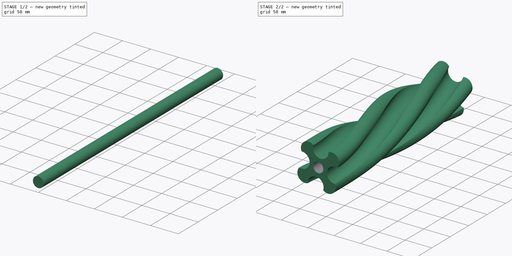
[diagram: build sequence overview — one tinted view per stage of 2, left to right]
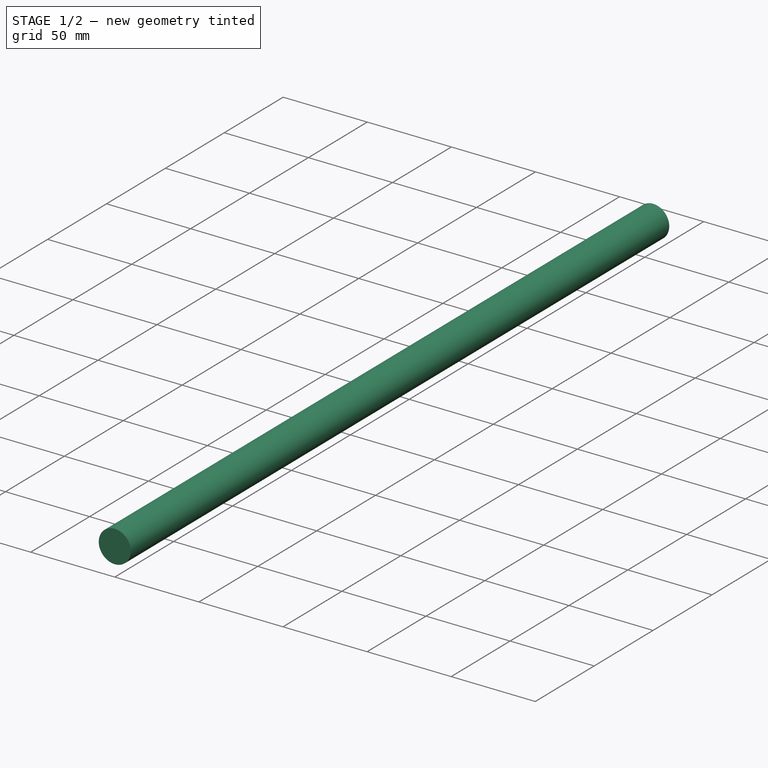
[diagram: stage 1 of 2 — iso view after this stage's code; geometry added in this stage tinted green]
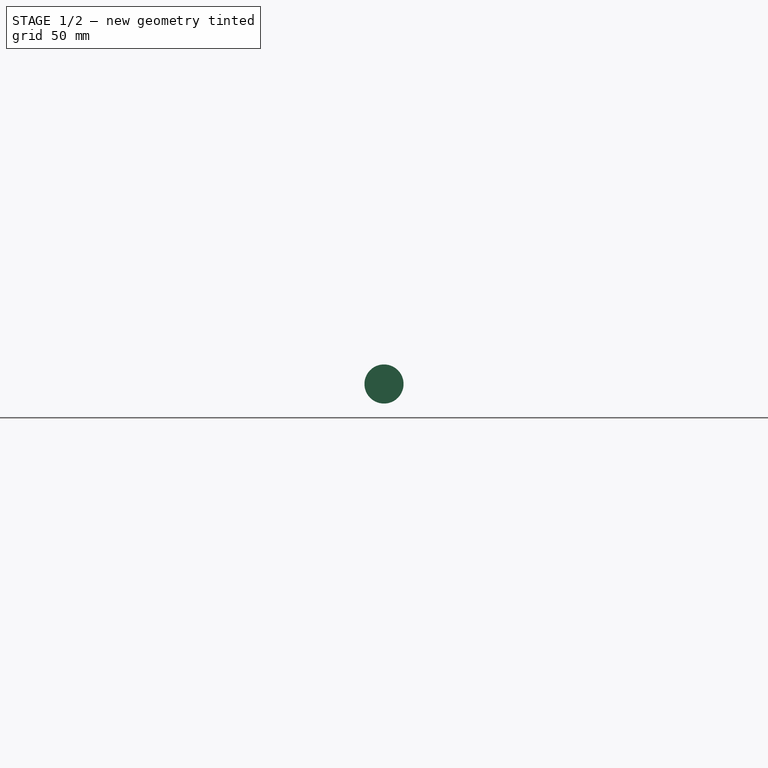
[diagram: stage 1 of 2 — front view after this stage's code; geometry added in this stage tinted green]
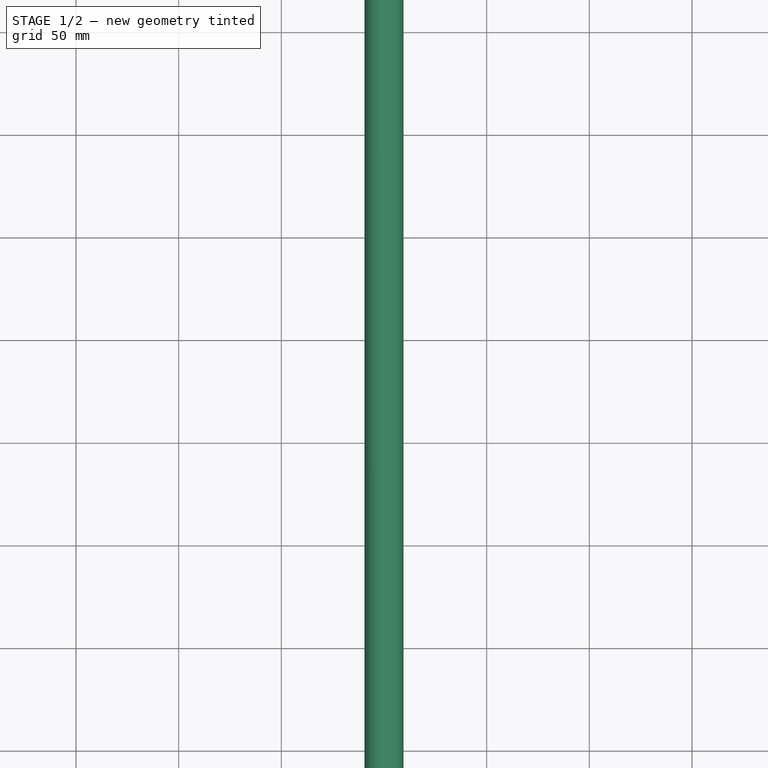
[diagram: stage 1 of 2 — top view after this stage's code; geometry added in this stage tinted green]
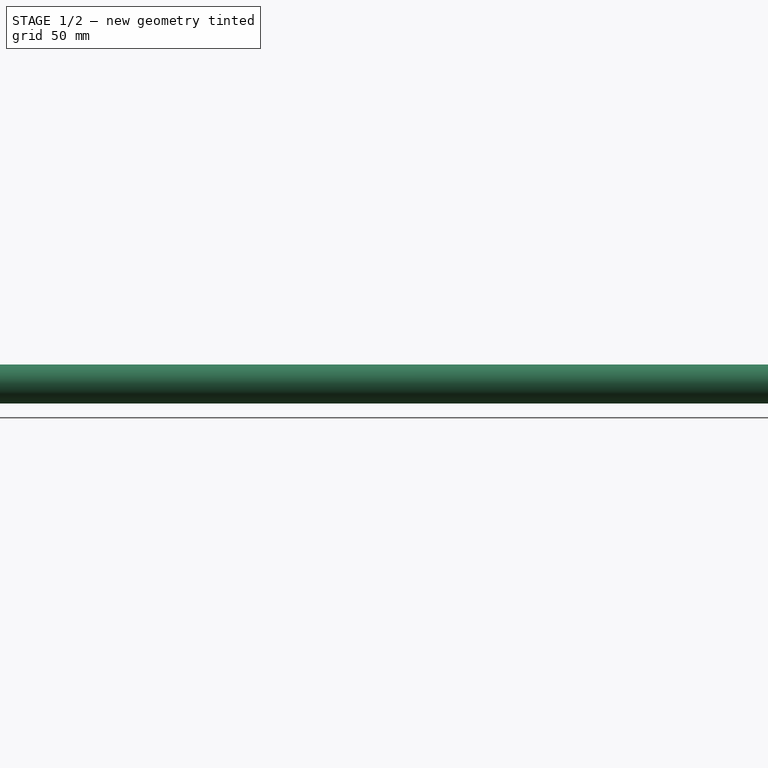
[diagram: stage 1 of 2 — right view after this stage's code; geometry added in this stage tinted green]
FCSTD DOCUMENT  (FreeCAD 2021.0226R23964 +3297 (Git))
Label: lobe2
License: All rights reserved
LicenseURL: http://en.wikipedia.org/wiki/All_rights_reserved
objects: Sketcher::SketchObject×4, Part::FeaturePython×1, Part::Extrusion×1, Part::Cut×1
note: 7 computed .brp shape members not serialized (recipe doc carries the construction recipe); baked Part::Feature solids carry a one-line shape summary decoded from their .brp

FEATURE [Sketcher::SketchObject] Sketch
  FullyConstrained = true
  MapMode = 5
  Placement = pos=(0,0,0) rot=(1,0,0;1.5708rad)
  sketch-geometry (9):
    g0: ArcOfCircle CenterX=0 CenterY=31.75 CenterZ=0 NormalX=0 NormalY=0 NormalZ=1 AngleXU=0 Radius=14.2627 StartAngle=0.202936 EndAngle=2.93866
    g1: ArcOfCircle CenterX=22.4506 CenterY=22.4506 CenterZ=0 NormalX=0 NormalY=0 NormalZ=1 AngleXU=0 Radius=14.8367 StartAngle=2.17925 EndAngle=5.67473
    g2: LineSegment [constr] StartX=22.4506 StartY=22.4506 StartZ=0 EndX=0 EndY=0 EndZ=0
    g3: ArcOfCircle CenterX=31.75 CenterY=0 CenterZ=0 NormalX=0 NormalY=0 NormalZ=1 AngleXU=0 Radius=14.2627 StartAngle=4.91533 EndAngle=7.65105
    g4: ArcOfCircle CenterX=-2.11e-14 CenterY=-31.75 CenterZ=0 NormalX=0 NormalY=0 NormalZ=1 AngleXU=0 Radius=14.2627 StartAngle=3.34453 EndAngle=6.08025
    g5: ArcOfCircle CenterX=22.4506 CenterY=-22.4506 CenterZ=0 NormalX=0 NormalY=0 NormalZ=1 AngleXU=0 Radius=14.8367 StartAngle=0.608455 EndAngle=4.10393
    g6: ArcOfCircle CenterX=-22.4506 CenterY=22.4506 CenterZ=0 NormalX=0 NormalY=0 NormalZ=1 AngleXU=0 Radius=14.8367 StartAngle=3.75005 EndAngle=7.24553
    g7: ArcOfCircle CenterX=-31.75 CenterY=1.69e-14 CenterZ=0 NormalX=0 NormalY=0 NormalZ=1 AngleXU=0 Radius=14.2627 StartAngle=1.77373 EndAngle=4.50945
    g8: ArcOfCircle CenterX=-22.4506 CenterY=-22.4506 CenterZ=0 NormalX=0 NormalY=0 NormalZ=1 AngleXU=0 Radius=14.8367 StartAngle=5.32084 EndAngle=8.81632
  constraints (34):
    c: PointOnObject(g0,g-2)
    c: DistanceX(g0,g0) = 27.94
    c: DistanceY(g-1,g0) = 31.75
    c: Coincident(g1,g0)
    c: Distance(g-1,g1) = 31.75
    c: Distance(g0,g1) = 29.21
    c: Coincident(g2,g1)
    c: Coincident(g2,g-1)
    c: Angle(g-1,g2) = 0.785398
    c: PointOnObject(g3,g-1)
    c: Coincident(g3,g1)
    c: Vertical(g1,g3)
    c: DistanceX(g-1,g3) = 31.75
    c: Horizontal(g0,g0)
    c: Equal(g0,g3)
    c: Coincident(g5,g4)
    c: Distance(g4,g5) = 29.21
    c: Distance(g-1,g5) = 31.75
    c: Equal(g4,g3)
    c: Horizontal(g4,g4)
    c: Equal(g1,g5)
    c: DistanceY(g4,g-1) = 31.75
    c: Coincident(g5,g3)
    c: Coincident(g7,g6)
    c: Equal(g6,g8)
    c: Coincident(g8,g7)
    c: Equal(g7,g0)
    c: Vertical(g6,g7)
    c: Distance(g6,g-1) = 31.75
    c: Distance(g8,g-1) = 31.75
    c: DistanceX(g7,g-1) = 31.75
    c: Coincident(g0,g6)
    c: Coincident(g4,g8)
    c: Distance(g6,g0) = 29.21
FEATURE [Sketcher::SketchObject] Sketch001
  FullyConstrained = true
  sketch-geometry (3):
    g0: LineSegment StartX=-45.72 StartY=355.6 StartZ=0 EndX=-45.72 EndY=0 EndZ=0
    g1: LineSegment [constr] StartX=-45.72 StartY=0 StartZ=0 EndX=45.72 EndY=-7.1e-15 EndZ=0
    g2: LineSegment StartX=45.72 StartY=-7.1e-15 StartZ=0 EndX=45.72 EndY=355.6 EndZ=0
  constraints (9):
    c: PointOnObject(g0,g-1)
    c: Vertical(g0)
    c: Coincident(g0,g1)
    c: Coincident(g1,g2)
    c: Vertical(g2)
    c: Symmetric(g0,g1,g-2)
    c: DistanceX(g0,g-1) = 45.72
    c: DistanceY(g0,g0) = 355.6
    c: Equal(g2,g0)
FEATURE [Sketcher::SketchObject] Sketch002
  FullyConstrained = true
  Placement = pos=(0,0,0) rot=(0.57735,0.57735,0.57735;2.0944rad)
  sketch-geometry (3):
    g0: LineSegment StartX=355.6 StartY=45.72 StartZ=0 EndX=0 EndY=45.72 EndZ=0
    g1: LineSegment [constr] StartX=0 StartY=45.72 StartZ=0 EndX=0 EndY=-45.72 EndZ=0
    g2: LineSegment StartX=0 StartY=-45.72 StartZ=0 EndX=355.6 EndY=-45.72 EndZ=0
  constraints (9):
    c: PointOnObject(g0,g-2)
    c: Horizontal(g0)
    c: Coincident(g0,g1)
    c: Coincident(g1,g2)
    c: Horizontal(g2)
    c: Symmetric(g0,g1,g-1)
    c: DistanceX(g0,g0) = 355.6
    c: Equal(g2,g0)
    c: DistanceY(g1,g0) = 91.44
FEATURE [Part::FeaturePython] CurvedArray  # WARN: FeaturePython — macro-defined, semantics opaque (R4)
  Axis = (0,1,0)
  Base = -> Sketch
  Distribution = 0
  DistributionReverse = false
  Hullcurves = -> [Sketch001,Sketch002]
  Items = 50
  OffsetEnd = 0
  OffsetStart = 0
  Solid = true
  Surface = false
  Twist = -200
FEATURE [Sketcher::SketchObject] Sketch003
  FullyConstrained = true
  MapMode = 5
  Placement = pos=(0,1.02e-14,0) rot=(1,0,0;1.5708rad)
  Support = -> [CurvedArray]
  sketch-geometry (1):
    g0: Circle CenterX=0 CenterY=0 CenterZ=0 NormalX=0 NormalY=0 NormalZ=1 AngleXU=0 Radius=9.525
  constraints (2):
    c: Coincident(g0,g-1)
    c: Radius(g0) = 9.525
FEATURE [Part::Extrusion] Extrude
  Base = -> Sketch003
  Dir = (1e-16,-1,-2e-16)
  DirMode = 2
  FaceMakerClass = Part::FaceMakerBullseye
  InnerTaperAngle = 0
  InnerTaperAngleRev = 0
  LengthFwd = 457.2
  LengthRev = 0
  Reversed = true
  Solid = true
  Symmetric = false
  UsePipeForDraft = true
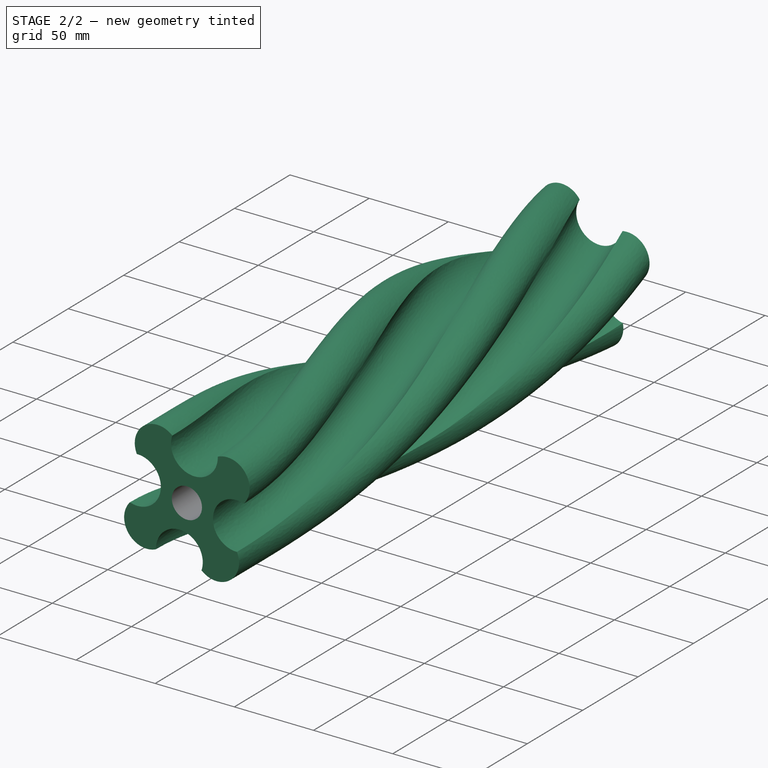
[diagram: stage 2 of 2 — iso view after this stage's code; geometry added in this stage tinted green]
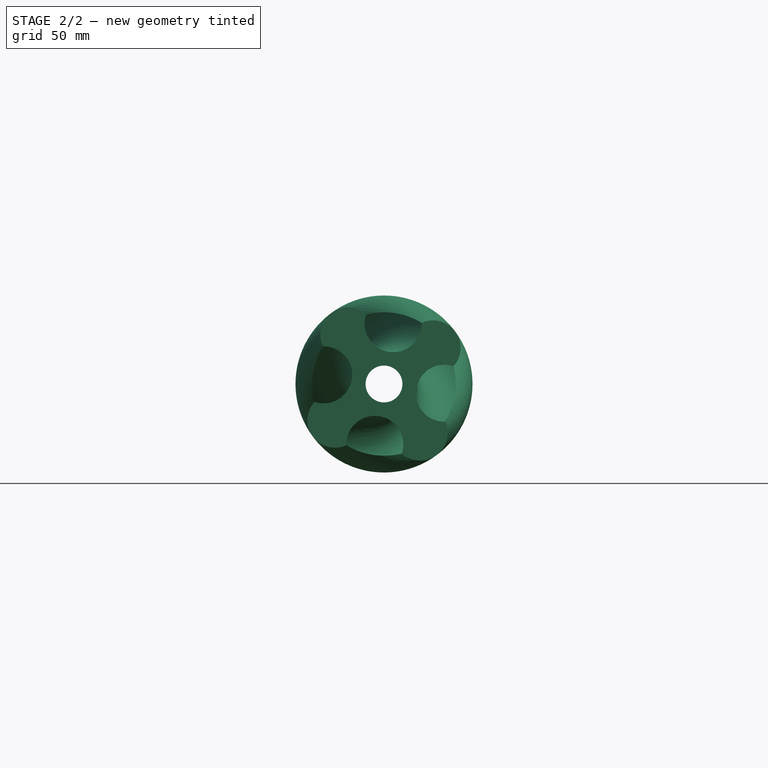
[diagram: stage 2 of 2 — front view after this stage's code; geometry added in this stage tinted green]
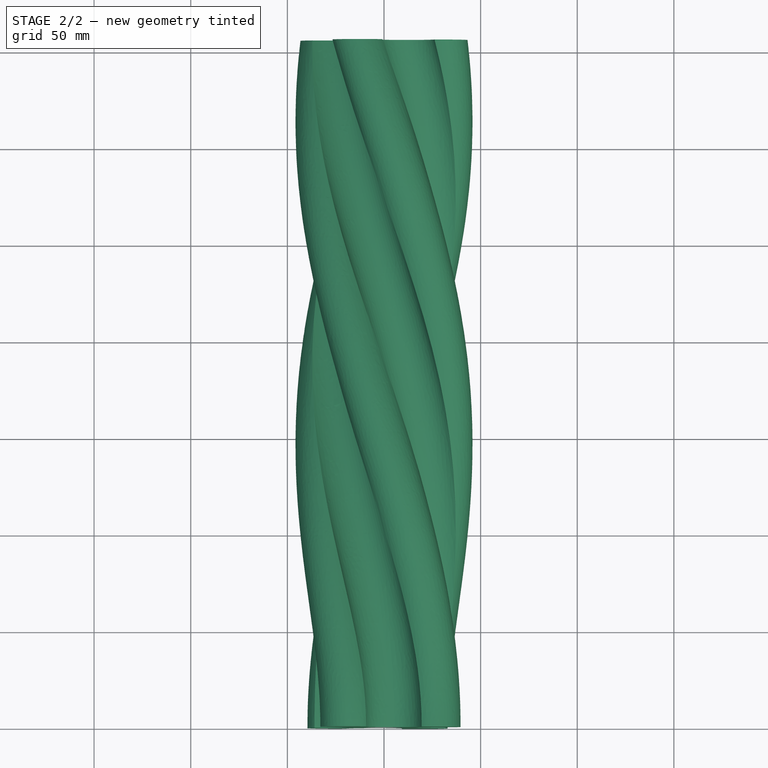
[diagram: stage 2 of 2 — top view after this stage's code; geometry added in this stage tinted green]
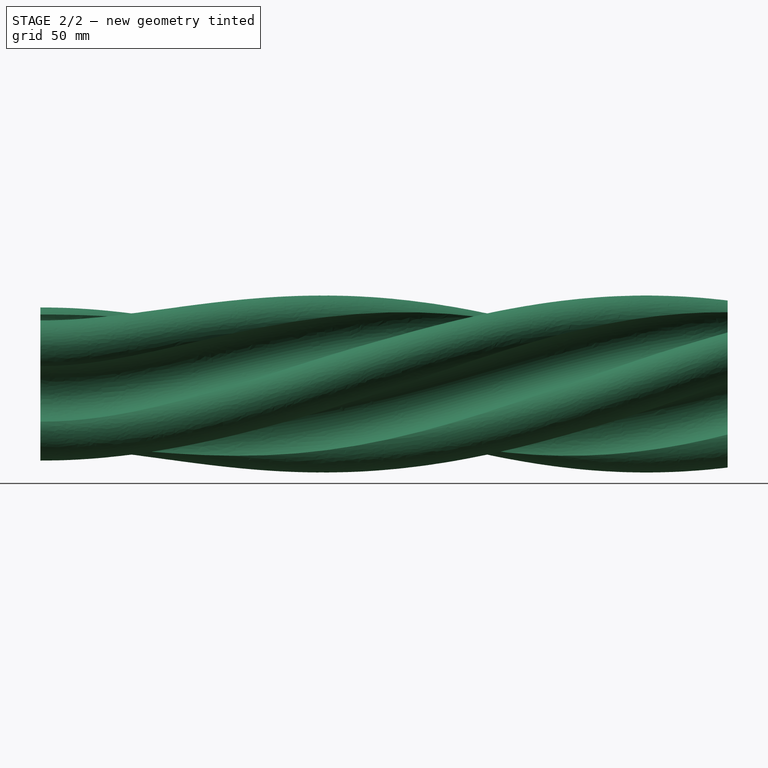
[diagram: stage 2 of 2 — right view after this stage's code; geometry added in this stage tinted green]
FEATURE [Part::Cut] Cut
  Base = -> CurvedArray
  Tool = -> Extrude
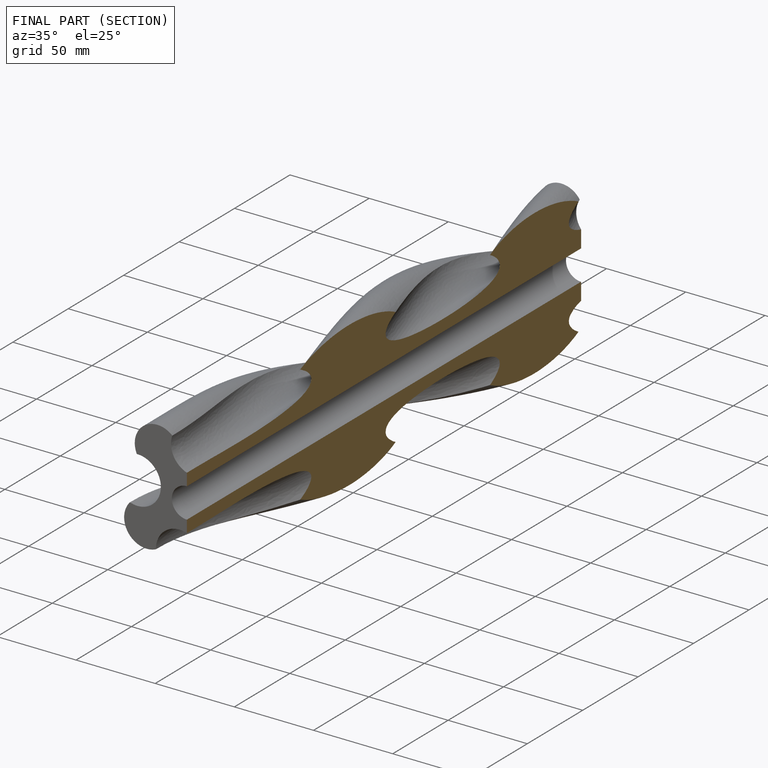
[diagram: finished part — half-section view (interior)]
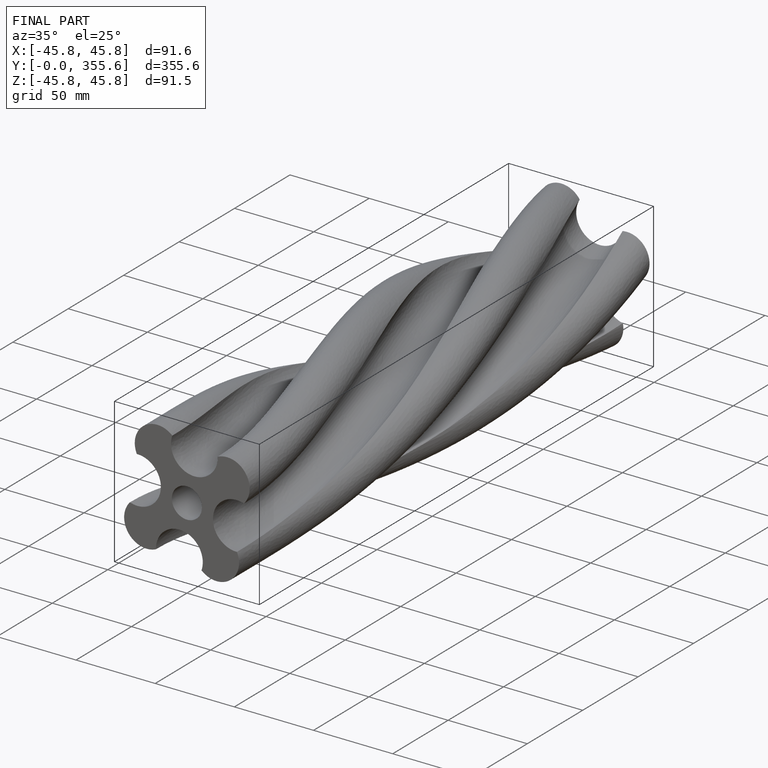
[diagram: finished part — iso view with bounding-box wireframe]
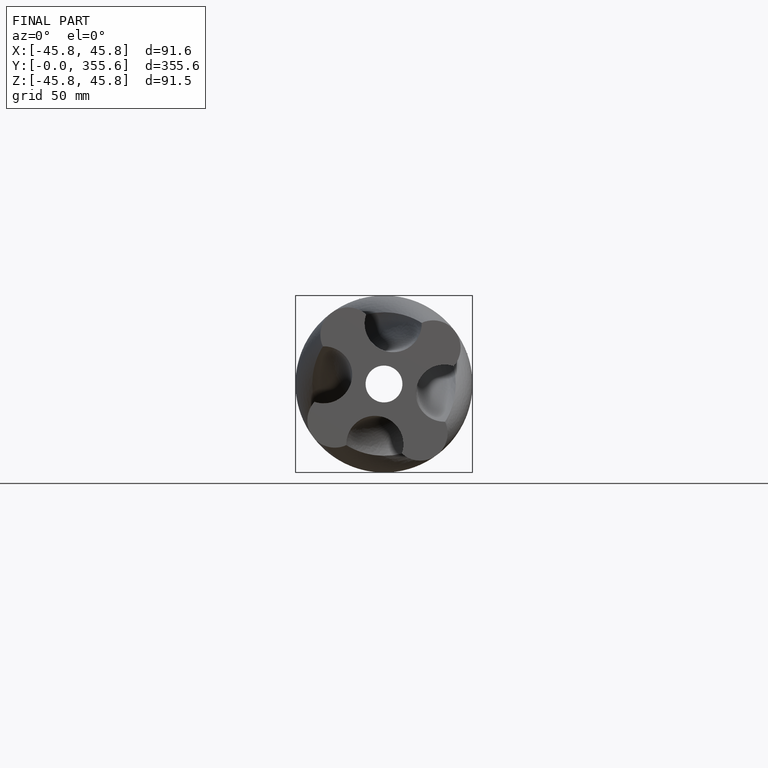
[diagram: finished part — front view with bounding-box wireframe]
